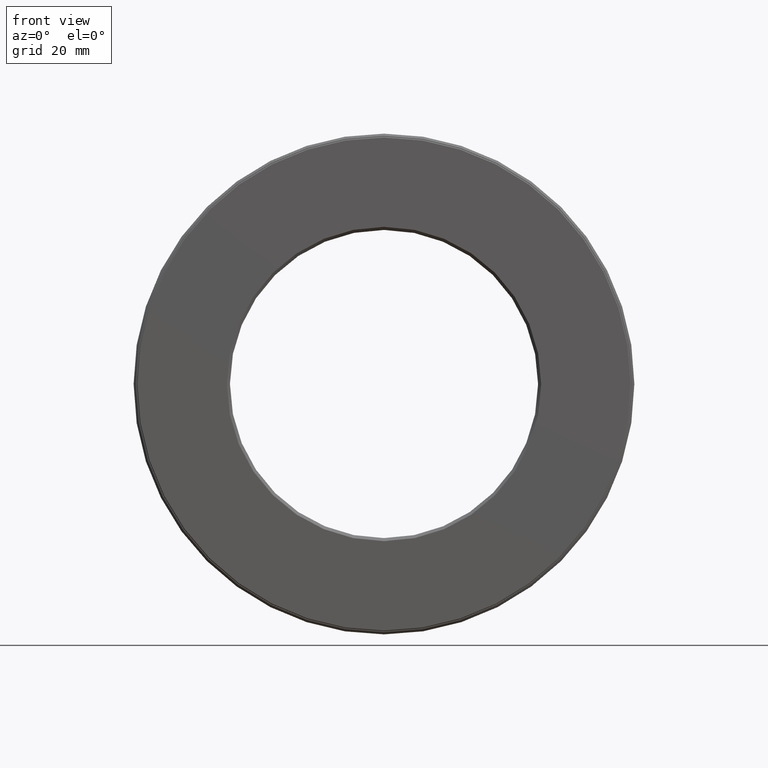
[diagram: clean part render]
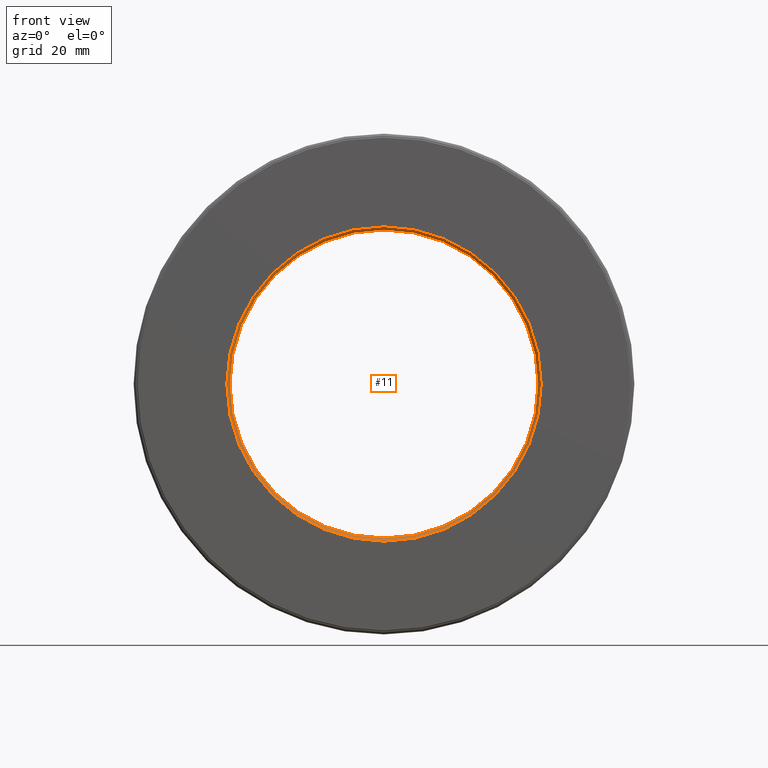
[diagram: same view with one face highlighted and labeled with its STEP entity id]
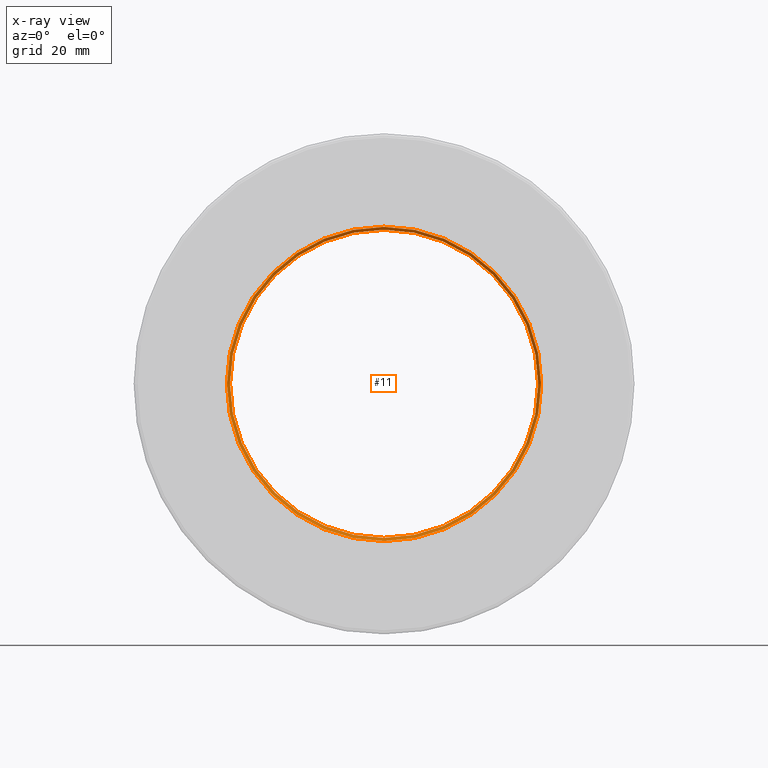
[diagram: x-ray of the same camera — body ghosted, the highlighted face saturated]
A machine part, front view. The second image highlights one B-rep face of the part: STEP entity #11.
The next image is the same camera in x-ray: the body ghosted, the highlighted face saturated — about 0% of this face is hidden behind the body in this view.
In plain terms, the highlighted conical surface has half-angle 45 deg.
Its self-contained STEP definition (entity closure, byte-faithful):
#11 = ADVANCED_FACE ( 'NONE', ( #262, #205 ), #411, .F. ) ;
#36 = ORIENTED_EDGE ( 'NONE', *, *, #547, .F. ) ;
#51 = CIRCLE ( 'NONE', #450, 1.020000000000000200 ) ;
#69 = AXIS2_PLACEMENT_3D ( 'NONE', #98, #192, #185 ) ;
#83 = CARTESIAN_POINT ( 'NONE',  ( 0.0000000000000000000, 2.048885995248197400E-016, 1.020000000000000200 ) ) ;
#98 = CARTESIAN_POINT ( 'NONE',  ( 0.0000000000000000000, 0.02000000000000046900, 0.0000000000000000000 ) ) ;
#123 = DIRECTION ( 'NONE',  ( -0.0000000000000000000, 1.000000000000000000, -0.0000000000000000000 ) ) ;
#124 = DIRECTION ( 'NONE',  ( -0.0000000000000000000, 1.000000000000000000, -0.0000000000000000000 ) ) ;
#185 = DIRECTION ( 'NONE',  ( 0.0000000000000000000, 0.0000000000000000000, -1.000000000000000000 ) ) ;
#192 = DIRECTION ( 'NONE',  ( 0.0000000000000000000, -1.000000000000000000, 0.0000000000000000000 ) ) ;
#205 = FACE_BOUND ( 'NONE', #484, .T. ) ;
#212 = CARTESIAN_POINT ( 'NONE',  ( 0.0000000000000000000, 2.048885995248197400E-016, 0.0000000000000000000 ) ) ;
#221 = VERTEX_POINT ( 'NONE', #83 ) ;
#256 = CARTESIAN_POINT ( 'NONE',  ( 0.0000000000000000000, 0.02000000000000046900, 0.0000000000000000000 ) ) ;
#262 = FACE_OUTER_BOUND ( 'NONE', #426, .T. ) ;
#263 = CARTESIAN_POINT ( 'NONE',  ( 0.0000000000000000000, 0.02000000000000046900, 1.000000000000000000 ) ) ;
#266 = EDGE_CURVE ( 'NONE', #299, #299, #392, .T. ) ;
#299 = VERTEX_POINT ( 'NONE', #263 ) ;
#305 = DIRECTION ( 'NONE',  ( 0.0000000000000000000, 0.0000000000000000000, 1.000000000000000000 ) ) ;
#392 = CIRCLE ( 'NONE', #429, 1.000000000000000000 ) ;
#411 = CONICAL_SURFACE ( 'NONE', #69, 1.000000000000000000, 0.7853981633974500600 ) ;
#426 = EDGE_LOOP ( 'NONE', ( #36 ) ) ;
#429 = AXIS2_PLACEMENT_3D ( 'NONE', #256, #124, #305 ) ;
#450 = AXIS2_PLACEMENT_3D ( 'NONE', #212, #123, #514 ) ;
#484 = EDGE_LOOP ( 'NONE', ( #604 ) ) ;
#514 = DIRECTION ( 'NONE',  ( 0.0000000000000000000, 0.0000000000000000000, 1.000000000000000000 ) ) ;
#547 = EDGE_CURVE ( 'NONE', #221, #221, #51, .T. ) ;
#604 = ORIENTED_EDGE ( 'NONE', *, *, #266, .T. ) ;